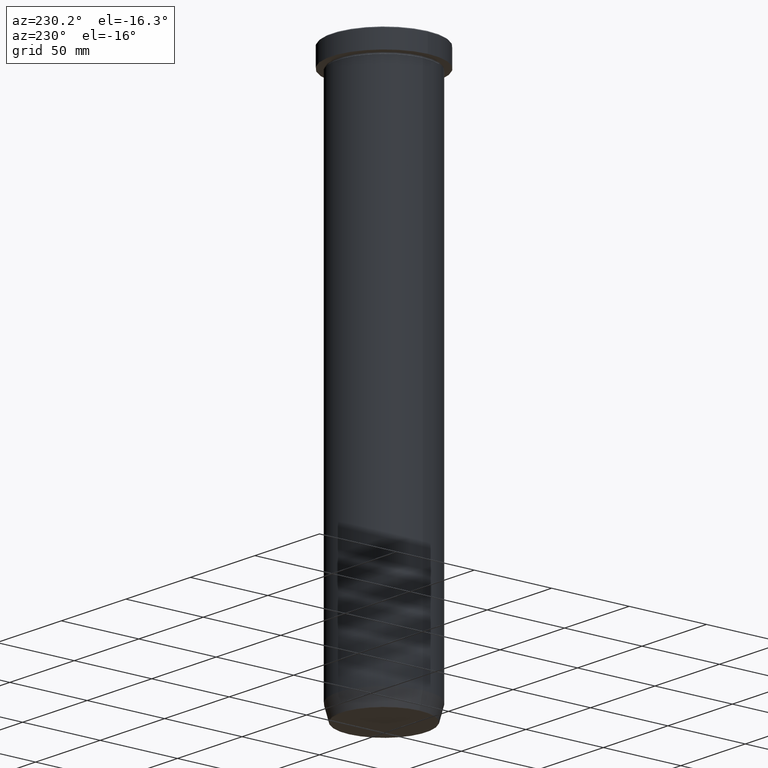
[diagram: clean part render]
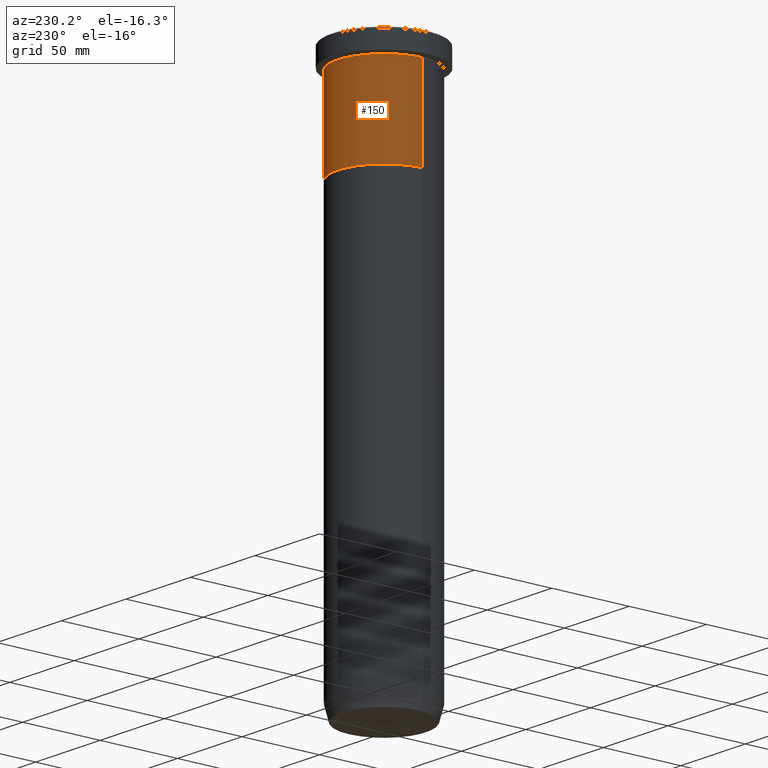
[diagram: same view with one face highlighted and labeled with its STEP entity id]
A machine part, auxiliary view. The second image highlights one B-rep face of the part: STEP entity #150.
In plain terms, the highlighted cylindrical surface (partial cylindrical patch) has radius 30 mm, axis along (-0, -0, 1).
Its self-contained STEP definition (entity closure, byte-faithful):
#7 = AXIS2_PLACEMENT_3D ( 'NONE', #491, #167, #525 ) ;
#12 = EDGE_CURVE ( 'NONE', #168, #570, #60, .T. ) ;
#24 = CARTESIAN_POINT ( 'NONE',  ( -30.00000000000000711, 3.673940397442059967E-15, -70.00000000000000000 ) ) ;
#33 = FACE_OUTER_BOUND ( 'NONE', #574, .T. ) ;
#36 = AXIS2_PLACEMENT_3D ( 'NONE', #585, #70, #442 ) ;
#57 = ORIENTED_EDGE ( 'NONE', *, *, #565, .T. ) ;
#60 = CIRCLE ( 'NONE', #274, 30.00000000000000355 ) ;
#67 = ORIENTED_EDGE ( 'NONE', *, *, #214, .F. ) ;
#70 = DIRECTION ( 'NONE',  ( -0.000000000000000000, -0.000000000000000000, 1.000000000000000000 ) ) ;
#87 = CARTESIAN_POINT ( 'NONE',  ( 0.000000000000000000, 0.000000000000000000, -70.00000000000000000 ) ) ;
#135 = DIRECTION ( 'NONE',  ( -0.000000000000000000, -0.000000000000000000, 1.000000000000000000 ) ) ;
#146 = ORIENTED_EDGE ( 'NONE', *, *, #427, .F. ) ;
#150 = ADVANCED_FACE ( 'NONE', ( #33 ), #430, .T. ) ;
#167 = DIRECTION ( 'NONE',  ( -0.000000000000000000, -0.000000000000000000, 1.000000000000000000 ) ) ;
#168 = VERTEX_POINT ( 'NONE', #170 ) ;
#170 = CARTESIAN_POINT ( 'NONE',  ( 30.00000000000000355, 0.000000000000000000, -70.00000000000000000 ) ) ;
#175 = CARTESIAN_POINT ( 'NONE',  ( -30.00000000000000000, 3.673940397442059178E-15, 0.000000000000000000 ) ) ;
#202 = VERTEX_POINT ( 'NONE', #490 ) ;
#206 = VECTOR ( 'NONE', #374, 1000.000000000000000 ) ;
#214 = EDGE_CURVE ( 'NONE', #339, #202, #263, .T. ) ;
#232 = VECTOR ( 'NONE', #519, 1000.000000000000000 ) ;
#243 = CARTESIAN_POINT ( 'NONE',  ( 30.00000000000000000, 0.000000000000000000, 0.000000000000000000 ) ) ;
#249 = LINE ( 'NONE', #243, #206 ) ;
#263 = CIRCLE ( 'NONE', #7, 30.00000000000000000 ) ;
#274 = AXIS2_PLACEMENT_3D ( 'NONE', #87, #135, #345 ) ;
#339 = VERTEX_POINT ( 'NONE', #354 ) ;
#345 = DIRECTION ( 'NONE',  ( 1.000000000000000000, 0.000000000000000000, 0.000000000000000000 ) ) ;
#354 = CARTESIAN_POINT ( 'NONE',  ( 30.00000000000000000, 0.000000000000000000, -12.99999999999999822 ) ) ;
#374 = DIRECTION ( 'NONE',  ( -0.000000000000000000, -0.000000000000000000, 1.000000000000000000 ) ) ;
#399 = LINE ( 'NONE', #175, #232 ) ;
#427 = EDGE_CURVE ( 'NONE', #168, #339, #249, .T. ) ;
#430 = CYLINDRICAL_SURFACE ( 'NONE', #36, 30.00000000000000000 ) ;
#442 = DIRECTION ( 'NONE',  ( 1.000000000000000000, 0.000000000000000000, 0.000000000000000000 ) ) ;
#490 = CARTESIAN_POINT ( 'NONE',  ( -30.00000000000000000, 3.673940397442059178E-15, -12.99999999999999822 ) ) ;
#491 = CARTESIAN_POINT ( 'NONE',  ( 0.000000000000000000, 0.000000000000000000, -12.99999999999999822 ) ) ;
#519 = DIRECTION ( 'NONE',  ( -0.000000000000000000, -0.000000000000000000, 1.000000000000000000 ) ) ;
#525 = DIRECTION ( 'NONE',  ( 1.000000000000000000, 0.000000000000000000, 0.000000000000000000 ) ) ;
#565 = EDGE_CURVE ( 'NONE', #570, #202, #399, .T. ) ;
#570 = VERTEX_POINT ( 'NONE', #24 ) ;
#574 = EDGE_LOOP ( 'NONE', ( #582, #57, #67, #146 ) ) ;
#582 = ORIENTED_EDGE ( 'NONE', *, *, #12, .T. ) ;
#585 = CARTESIAN_POINT ( 'NONE',  ( 0.000000000000000000, 0.000000000000000000, 0.000000000000000000 ) ) ;